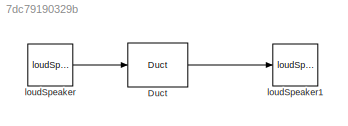
MODEL slx_7dc79190329b
KIND model
CONFIG AbsTol = auto
CONFIG FixedStep = 1.0
CONFIG MaxStep = auto
CONFIG MinStep = auto
CONFIG RelTol = 1e-3
CONFIG SampleTimeConstraint = Unconstrained
CONFIG Solver = FixedStepDiscrete
CONFIG SolverMode = Auto
CONFIG SolverName = FixedStepDiscrete
CONFIG StartTime = 0.0
CONFIG StopTime = 1.0
BLOCK [Reference] Duct  REF=taXlibrary/Duct
  AttributesFormatString = %<l> m
  Ports = [1, 1]
  SourceBlock = taXlibrary/Duct
  element = Duct
  l = 0.5
  minres = 40
  order = 3
  sensorPositions = []
BLOCK [Reference] loudSpeaker  REF=taXlibrary/loudSpeaker
  A = 1
  Amp = 1
  AttributesFormatString = %<Amp> m/s
  Mach = 0.1
  Ports = [0, 1]
  SourceBlock = taXlibrary/loudSpeaker
  c = 100
  element = loudSpeaker
  loc = Upstream
  rho = 1.2
BLOCK [Reference] loudSpeaker1  REF=taXlibrary/loudSpeaker
  A = []
  Amp = 0.1
  AttributesFormatString = %<Amp> m/s
  Mach = []
  Ports = [1]
  SourceBlock = taXlibrary/loudSpeaker
  c = []
  element = loudSpeaker
  loc = Downstream
  rho = []
LINE Duct:1 -> loudSpeaker1:1
LINE loudSpeaker:1 -> Duct:1
